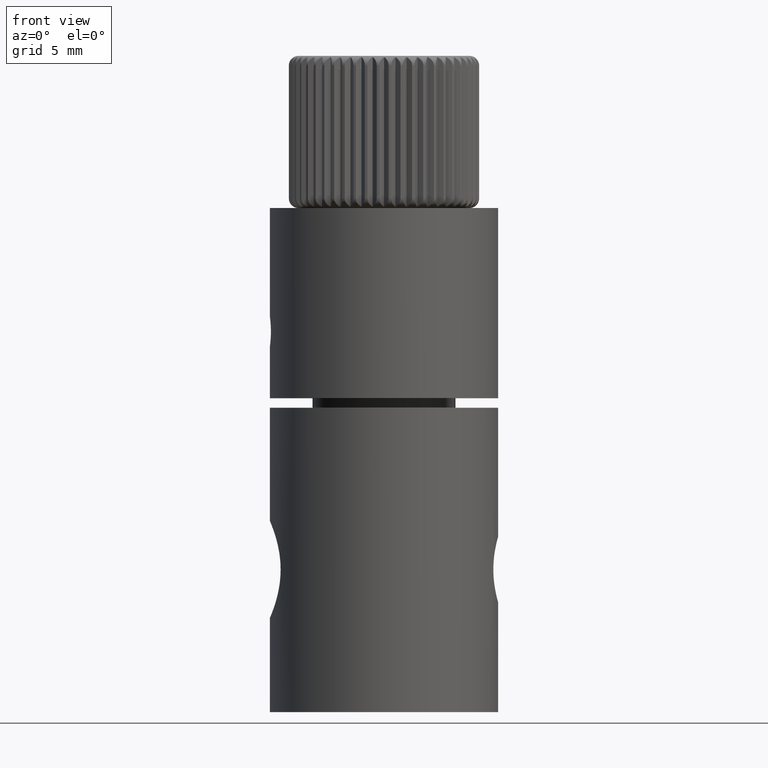
[diagram: clean part render]
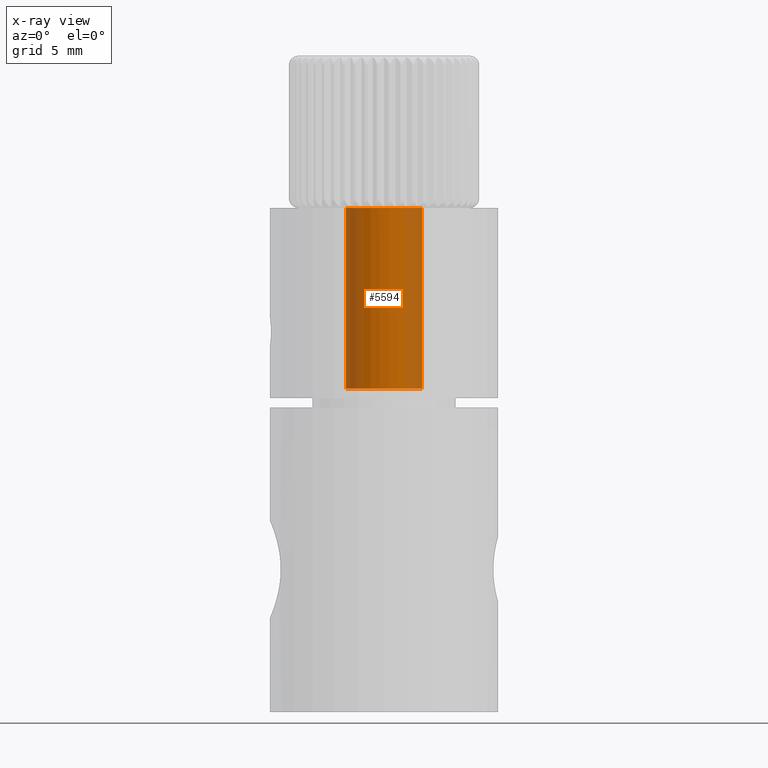
[diagram: x-ray — body ghosted, one internal face saturated and labeled with its STEP entity id]
A machine part, front view, then the same camera in x-ray: the body is ghosted and one INTERNAL B-rep face — a face not visible from any outside direction — is saturated and labeled: STEP entity #5594.
In plain terms, the highlighted cylindrical surface (partial cylindrical patch) has radius 2 mm, axis along (-0, 0, -1).
Its self-contained STEP definition (entity closure, byte-faithful):
#82 = DIRECTION ( 'NONE',  ( -4.336808689942016800E-019, 1.131530321521338700E-033, -1.000000000000000000 ) ) ;
#391 = CARTESIAN_POINT ( 'NONE',  ( -4.119968255444933800E-018, 1.074953805445277400E-032, 16.99999999999995400 ) ) ;
#734 = VERTEX_POINT ( 'NONE', #10048 ) ;
#920 = CARTESIAN_POINT ( 'NONE',  ( -2.123420071542873200E-017, 5.540281732625599100E-032, -22.46273327591177700 ) ) ;
#1199 = CIRCLE ( 'NONE', #8215, 2.000000000000009800 ) ;
#1567 = VERTEX_POINT ( 'NONE', #10303 ) ;
#2377 = VERTEX_POINT ( 'NONE', #6392 ) ;
#2607 = EDGE_CURVE ( 'NONE', #1567, #8221, #3890, .T. ) ;
#3029 = DIRECTION ( 'NONE',  ( -4.336808689942016800E-019, 1.131530321521338700E-033, -1.000000000000000000 ) ) ;
#3213 = CARTESIAN_POINT ( 'NONE',  ( 0.0000000000000000000, 0.0000000000000000000, 26.49999999999999600 ) ) ;
#3406 = CIRCLE ( 'NONE', #5637, 2.000000000000008900 ) ;
#3593 = DIRECTION ( 'NONE',  ( -1.000000000000000000, -2.777725965907848100E-016, 0.0000000000000000000 ) ) ;
#3890 = LINE ( 'NONE', #9810, #8277 ) ;
#3934 = EDGE_CURVE ( 'NONE', #1567, #734, #1199, .T. ) ;
#4117 = VECTOR ( 'NONE', #4873, 1000.000000000000000 ) ;
#4789 = FACE_OUTER_BOUND ( 'NONE', #10685, .T. ) ;
#4843 = DIRECTION ( 'NONE',  ( 4.336808689942016800E-019, -1.131530321521338700E-033, 1.000000000000000000 ) ) ;
#4873 = DIRECTION ( 'NONE',  ( -4.336808689942016800E-019, 1.131530321521338700E-033, -1.000000000000000000 ) ) ;
#5471 = EDGE_CURVE ( 'NONE', #734, #2377, #7339, .T. ) ;
#5486 = CARTESIAN_POINT ( 'NONE',  ( 2.000000000000000900, 8.004745530110414900E-016, 16.99999999999995400 ) ) ;
#5594 = ADVANCED_FACE ( 'NONE', ( #4789 ), #9050, .T. ) ;
#5637 = AXIS2_PLACEMENT_3D ( 'NONE', #391, #4843, #10816 ) ;
#5705 = CARTESIAN_POINT ( 'NONE',  ( -2.000000000000008900, -5.555451931815719800E-016, -22.46273327591177700 ) ) ;
#6007 = AXIS2_PLACEMENT_3D ( 'NONE', #920, #82, #3593 ) ;
#6392 = CARTESIAN_POINT ( 'NONE',  ( -2.000000000000000900, -5.555451931815699100E-016, 16.99999999999995400 ) ) ;
#6544 = DIRECTION ( 'NONE',  ( -4.336808689942016800E-019, 1.131530321521338700E-033, -1.000000000000000000 ) ) ;
#7339 = LINE ( 'NONE', #5705, #4117 ) ;
#8215 = AXIS2_PLACEMENT_3D ( 'NONE', #3213, #6544, #9129 ) ;
#8221 = VERTEX_POINT ( 'NONE', #5486 ) ;
#8277 = VECTOR ( 'NONE', #3029, 1000.000000000000000 ) ;
#9050 = CYLINDRICAL_SURFACE ( 'NONE', #6007, 2.000000000000008900 ) ;
#9129 = DIRECTION ( 'NONE',  ( -1.000000000000000000, -2.777725965907847600E-016, 0.0000000000000000000 ) ) ;
#9510 = EDGE_CURVE ( 'NONE', #2377, #8221, #3406, .T. ) ;
#9810 = CARTESIAN_POINT ( 'NONE',  ( 2.000000000000008900, 8.004745530110446400E-016, -22.46273327591177700 ) ) ;
#10002 = ORIENTED_EDGE ( 'NONE', *, *, #3934, .T. ) ;
#10048 = CARTESIAN_POINT ( 'NONE',  ( -2.000000000000009800, -5.555451931815722700E-016, 26.49999999999999600 ) ) ;
#10049 = ORIENTED_EDGE ( 'NONE', *, *, #9510, .T. ) ;
#10303 = CARTESIAN_POINT ( 'NONE',  ( 2.000000000000001800, 8.004745530110417800E-016, 26.49999999999999600 ) ) ;
#10512 = ORIENTED_EDGE ( 'NONE', *, *, #5471, .T. ) ;
#10586 = ORIENTED_EDGE ( 'NONE', *, *, #2607, .F. ) ;
#10685 = EDGE_LOOP ( 'NONE', ( #10586, #10002, #10512, #10049 ) ) ;
#10816 = DIRECTION ( 'NONE',  ( 1.000000000000000000, 2.777725965907848100E-016, 0.0000000000000000000 ) ) ;